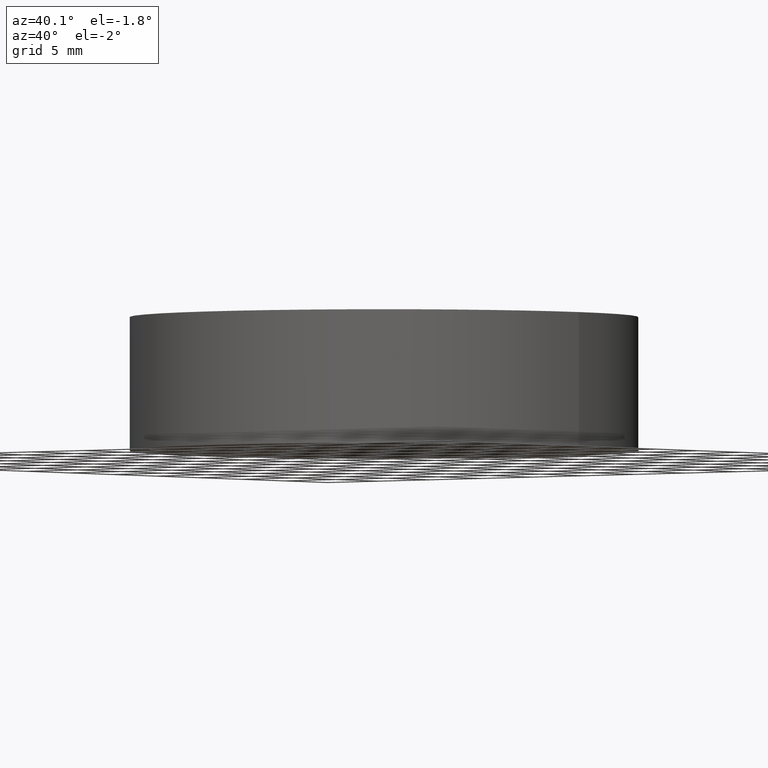
[diagram: clean part render]
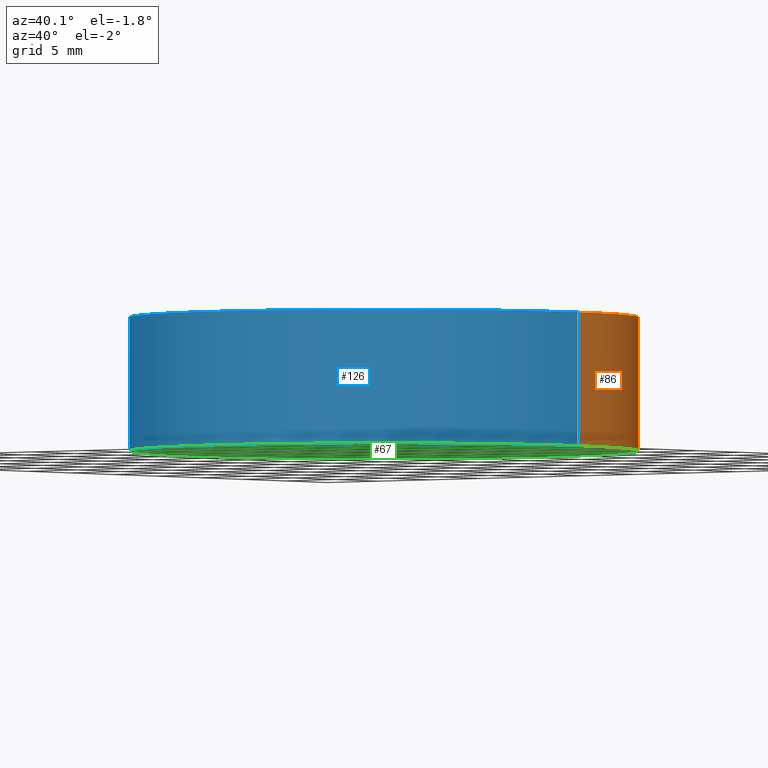
[diagram: same view with three faces highlighted in distinct colors, each labeled with its STEP entity id]
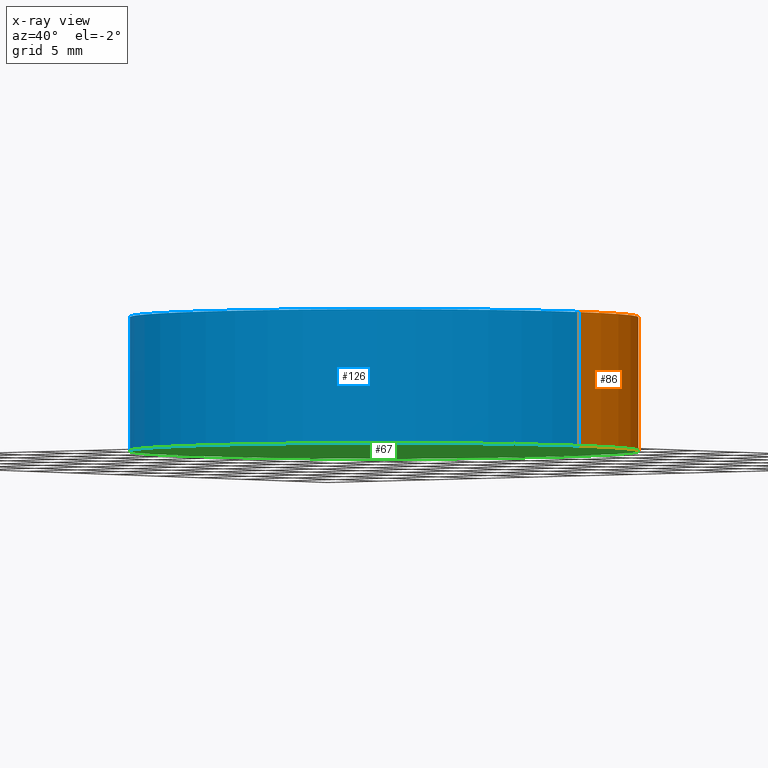
[diagram: x-ray of the same camera — body ghosted, the three highlighted faces saturated]
A machine part, auxiliary view with three faces highlighted in distinct colors.
The next image is the same camera in x-ray (body ghosted, the three faces saturated) — at least one of them is partly hidden behind the body in this view.
Their STEP definitions:

[orange] entity #86 — the highlighted cylindrical surface (partial cylindrical patch) has radius 19.05 mm, axis along (-0, -0, -1).
#4 = CARTESIAN_POINT ( 'NONE',  ( 0.0000000000000000000, 0.0000000000000000000, 0.0000000000000000000 ) ) ;
#5 = LINE ( 'NONE', #134, #117 ) ;
#13 = CARTESIAN_POINT ( 'NONE',  ( 19.05000000000000100, 2.332952152375708000E-015, 10.00000000000000000 ) ) ;
#14 = VECTOR ( 'NONE', #40, 1000.000000000000000 ) ;
#18 = AXIS2_PLACEMENT_3D ( 'NONE', #35, #66, #138 ) ;
#19 = DIRECTION ( 'NONE',  ( 0.0000000000000000000, 0.0000000000000000000, 1.000000000000000000 ) ) ;
#22 = CARTESIAN_POINT ( 'NONE',  ( 19.05000000000000100, 2.332952152375708000E-015, 0.0000000000000000000 ) ) ;
#29 = AXIS2_PLACEMENT_3D ( 'NONE', #4, #45, #50 ) ;
#35 = CARTESIAN_POINT ( 'NONE',  ( 0.0000000000000000000, 0.0000000000000000000, 10.00000000000000000 ) ) ;
#37 = EDGE_CURVE ( 'NONE', #115, #74, #130, .T. ) ;
#40 = DIRECTION ( 'NONE',  ( -0.0000000000000000000, -0.0000000000000000000, -1.000000000000000000 ) ) ;
#44 = VERTEX_POINT ( 'NONE', #139 ) ;
#45 = DIRECTION ( 'NONE',  ( 0.0000000000000000000, 0.0000000000000000000, 1.000000000000000000 ) ) ;
#48 = AXIS2_PLACEMENT_3D ( 'NONE', #52, #19, #80 ) ;
#50 = DIRECTION ( 'NONE',  ( 1.000000000000000000, 0.0000000000000000000, 0.0000000000000000000 ) ) ;
#52 = CARTESIAN_POINT ( 'NONE',  ( 0.0000000000000000000, 0.0000000000000000000, 10.00000000000000000 ) ) ;
#58 = CARTESIAN_POINT ( 'NONE',  ( 19.05000000000000100, 2.332952152375708000E-015, 10.00000000000000000 ) ) ;
#61 = EDGE_CURVE ( 'NONE', #115, #44, #124, .T. ) ;
#65 = CIRCLE ( 'NONE', #29, 19.05000000000000100 ) ;
#66 = DIRECTION ( 'NONE',  ( -0.0000000000000000000, -0.0000000000000000000, -1.000000000000000000 ) ) ;
#69 = DIRECTION ( 'NONE',  ( -0.0000000000000000000, -0.0000000000000000000, -1.000000000000000000 ) ) ;
#74 = VERTEX_POINT ( 'NONE', #22 ) ;
#80 = DIRECTION ( 'NONE',  ( 1.000000000000000000, 0.0000000000000000000, 0.0000000000000000000 ) ) ;
#82 = CYLINDRICAL_SURFACE ( 'NONE', #18, 19.05000000000000100 ) ;
#86 = ADVANCED_FACE ( 'NONE', ( #103 ), #82, .T. ) ;
#91 = ORIENTED_EDGE ( 'NONE', *, *, #128, .T. ) ;
#95 = ORIENTED_EDGE ( 'NONE', *, *, #118, .F. ) ;
#103 = FACE_OUTER_BOUND ( 'NONE', #127, .T. ) ;
#107 = CARTESIAN_POINT ( 'NONE',  ( -19.05000000000000100, 0.0000000000000000000, 0.0000000000000000000 ) ) ;
#115 = VERTEX_POINT ( 'NONE', #13 ) ;
#117 = VECTOR ( 'NONE', #69, 1000.000000000000000 ) ;
#118 = EDGE_CURVE ( 'NONE', #44, #119, #5, .T. ) ;
#119 = VERTEX_POINT ( 'NONE', #107 ) ;
#124 = CIRCLE ( 'NONE', #48, 19.05000000000000100 ) ;
#127 = EDGE_LOOP ( 'NONE', ( #131, #136, #91, #95 ) ) ;
#128 = EDGE_CURVE ( 'NONE', #74, #119, #65, .T. ) ;
#130 = LINE ( 'NONE', #58, #14 ) ;
#131 = ORIENTED_EDGE ( 'NONE', *, *, #61, .F. ) ;
#134 = CARTESIAN_POINT ( 'NONE',  ( -19.05000000000000100, 0.0000000000000000000, 10.00000000000000000 ) ) ;
#136 = ORIENTED_EDGE ( 'NONE', *, *, #37, .T. ) ;
#138 = DIRECTION ( 'NONE',  ( -1.000000000000000000, 0.0000000000000000000, 0.0000000000000000000 ) ) ;
#139 = CARTESIAN_POINT ( 'NONE',  ( -19.05000000000000100, 0.0000000000000000000, 10.00000000000000000 ) ) ;

[blue] entity #126 — the highlighted cylindrical surface (partial cylindrical patch) has radius 19.05 mm, axis along (-0, -0, -1).
#3 = DIRECTION ( 'NONE',  ( 1.000000000000000000, 0.0000000000000000000, 0.0000000000000000000 ) ) ;
#5 = LINE ( 'NONE', #134, #117 ) ;
#6 = CARTESIAN_POINT ( 'NONE',  ( 0.0000000000000000000, 0.0000000000000000000, 0.0000000000000000000 ) ) ;
#8 = CYLINDRICAL_SURFACE ( 'NONE', #20, 19.05000000000000100 ) ;
#9 = AXIS2_PLACEMENT_3D ( 'NONE', #109, #17, #122 ) ;
#13 = CARTESIAN_POINT ( 'NONE',  ( 19.05000000000000100, 2.332952152375708000E-015, 10.00000000000000000 ) ) ;
#14 = VECTOR ( 'NONE', #40, 1000.000000000000000 ) ;
#15 = ORIENTED_EDGE ( 'NONE', *, *, #118, .T. ) ;
#17 = DIRECTION ( 'NONE',  ( 0.0000000000000000000, 0.0000000000000000000, 1.000000000000000000 ) ) ;
#20 = AXIS2_PLACEMENT_3D ( 'NONE', #46, #54, #94 ) ;
#22 = CARTESIAN_POINT ( 'NONE',  ( 19.05000000000000100, 2.332952152375708000E-015, 0.0000000000000000000 ) ) ;
#37 = EDGE_CURVE ( 'NONE', #115, #74, #130, .T. ) ;
#40 = DIRECTION ( 'NONE',  ( -0.0000000000000000000, -0.0000000000000000000, -1.000000000000000000 ) ) ;
#44 = VERTEX_POINT ( 'NONE', #139 ) ;
#46 = CARTESIAN_POINT ( 'NONE',  ( 0.0000000000000000000, 0.0000000000000000000, 10.00000000000000000 ) ) ;
#49 = ORIENTED_EDGE ( 'NONE', *, *, #73, .T. ) ;
#54 = DIRECTION ( 'NONE',  ( -0.0000000000000000000, -0.0000000000000000000, -1.000000000000000000 ) ) ;
#55 = AXIS2_PLACEMENT_3D ( 'NONE', #6, #79, #3 ) ;
#56 = CIRCLE ( 'NONE', #9, 19.05000000000000100 ) ;
#58 = CARTESIAN_POINT ( 'NONE',  ( 19.05000000000000100, 2.332952152375708000E-015, 10.00000000000000000 ) ) ;
#69 = DIRECTION ( 'NONE',  ( -0.0000000000000000000, -0.0000000000000000000, -1.000000000000000000 ) ) ;
#73 = EDGE_CURVE ( 'NONE', #119, #74, #77, .T. ) ;
#74 = VERTEX_POINT ( 'NONE', #22 ) ;
#75 = ORIENTED_EDGE ( 'NONE', *, *, #137, .F. ) ;
#77 = CIRCLE ( 'NONE', #55, 19.05000000000000100 ) ;
#78 = EDGE_LOOP ( 'NONE', ( #99, #75, #15, #49 ) ) ;
#79 = DIRECTION ( 'NONE',  ( 0.0000000000000000000, 0.0000000000000000000, 1.000000000000000000 ) ) ;
#85 = FACE_OUTER_BOUND ( 'NONE', #78, .T. ) ;
#94 = DIRECTION ( 'NONE',  ( -1.000000000000000000, 0.0000000000000000000, 0.0000000000000000000 ) ) ;
#99 = ORIENTED_EDGE ( 'NONE', *, *, #37, .F. ) ;
#107 = CARTESIAN_POINT ( 'NONE',  ( -19.05000000000000100, 0.0000000000000000000, 0.0000000000000000000 ) ) ;
#109 = CARTESIAN_POINT ( 'NONE',  ( 0.0000000000000000000, 0.0000000000000000000, 10.00000000000000000 ) ) ;
#115 = VERTEX_POINT ( 'NONE', #13 ) ;
#117 = VECTOR ( 'NONE', #69, 1000.000000000000000 ) ;
#118 = EDGE_CURVE ( 'NONE', #44, #119, #5, .T. ) ;
#119 = VERTEX_POINT ( 'NONE', #107 ) ;
#122 = DIRECTION ( 'NONE',  ( 1.000000000000000000, 0.0000000000000000000, 0.0000000000000000000 ) ) ;
#126 = ADVANCED_FACE ( 'NONE', ( #85 ), #8, .T. ) ;
#130 = LINE ( 'NONE', #58, #14 ) ;
#134 = CARTESIAN_POINT ( 'NONE',  ( -19.05000000000000100, 0.0000000000000000000, 10.00000000000000000 ) ) ;
#137 = EDGE_CURVE ( 'NONE', #44, #115, #56, .T. ) ;
#139 = CARTESIAN_POINT ( 'NONE',  ( -19.05000000000000100, 0.0000000000000000000, 10.00000000000000000 ) ) ;

[green] entity #67 — the highlighted planar face has unit normal (0, 0, 1).
#2 = EDGE_LOOP ( 'NONE', ( #104, #57 ) ) ;
#3 = DIRECTION ( 'NONE',  ( 1.000000000000000000, 0.0000000000000000000, 0.0000000000000000000 ) ) ;
#4 = CARTESIAN_POINT ( 'NONE',  ( 0.0000000000000000000, 0.0000000000000000000, 0.0000000000000000000 ) ) ;
#6 = CARTESIAN_POINT ( 'NONE',  ( 0.0000000000000000000, 0.0000000000000000000, 0.0000000000000000000 ) ) ;
#22 = CARTESIAN_POINT ( 'NONE',  ( 19.05000000000000100, 2.332952152375708000E-015, 0.0000000000000000000 ) ) ;
#29 = AXIS2_PLACEMENT_3D ( 'NONE', #4, #45, #50 ) ;
#34 = DIRECTION ( 'NONE',  ( 1.000000000000000000, 0.0000000000000000000, -0.0000000000000000000 ) ) ;
#45 = DIRECTION ( 'NONE',  ( 0.0000000000000000000, 0.0000000000000000000, 1.000000000000000000 ) ) ;
#50 = DIRECTION ( 'NONE',  ( 1.000000000000000000, 0.0000000000000000000, 0.0000000000000000000 ) ) ;
#55 = AXIS2_PLACEMENT_3D ( 'NONE', #6, #79, #3 ) ;
#57 = ORIENTED_EDGE ( 'NONE', *, *, #128, .F. ) ;
#65 = CIRCLE ( 'NONE', #29, 19.05000000000000100 ) ;
#67 = ADVANCED_FACE ( 'NONE', ( #98 ), #125, .F. ) ;
#73 = EDGE_CURVE ( 'NONE', #119, #74, #77, .T. ) ;
#74 = VERTEX_POINT ( 'NONE', #22 ) ;
#77 = CIRCLE ( 'NONE', #55, 19.05000000000000100 ) ;
#79 = DIRECTION ( 'NONE',  ( 0.0000000000000000000, 0.0000000000000000000, 1.000000000000000000 ) ) ;
#98 = FACE_OUTER_BOUND ( 'NONE', #2, .T. ) ;
#101 = AXIS2_PLACEMENT_3D ( 'NONE', #112, #133, #34 ) ;
#104 = ORIENTED_EDGE ( 'NONE', *, *, #73, .F. ) ;
#107 = CARTESIAN_POINT ( 'NONE',  ( -19.05000000000000100, 0.0000000000000000000, 0.0000000000000000000 ) ) ;
#112 = CARTESIAN_POINT ( 'NONE',  ( 0.0000000000000000000, 0.0000000000000000000, 0.0000000000000000000 ) ) ;
#119 = VERTEX_POINT ( 'NONE', #107 ) ;
#125 = PLANE ( 'NONE',  #101 ) ;
#128 = EDGE_CURVE ( 'NONE', #74, #119, #65, .T. ) ;
#133 = DIRECTION ( 'NONE',  ( 0.0000000000000000000, 0.0000000000000000000, 1.000000000000000000 ) ) ;